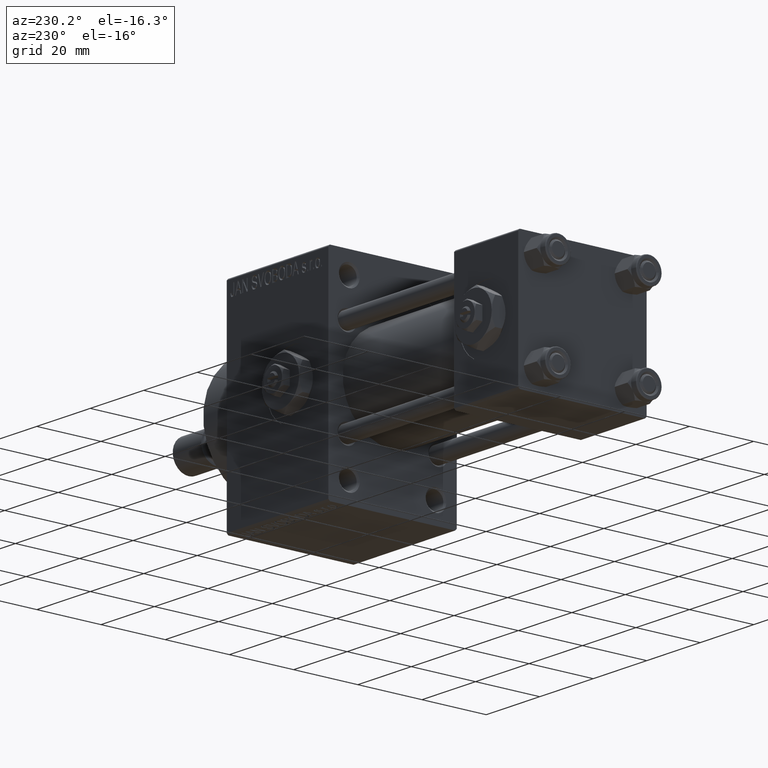
[diagram: clean part render]
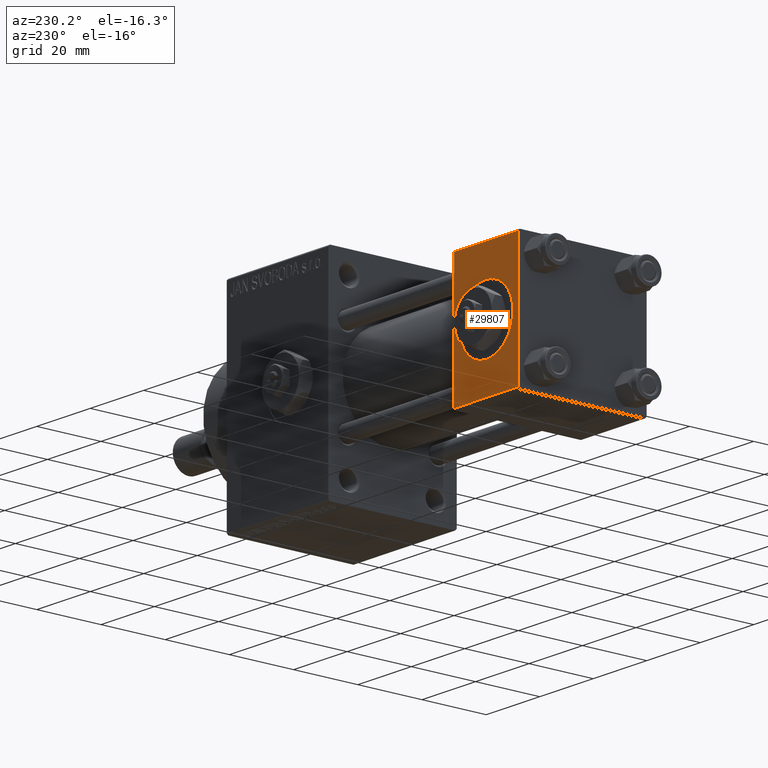
[diagram: same view with one face highlighted and labeled with its STEP entity id]
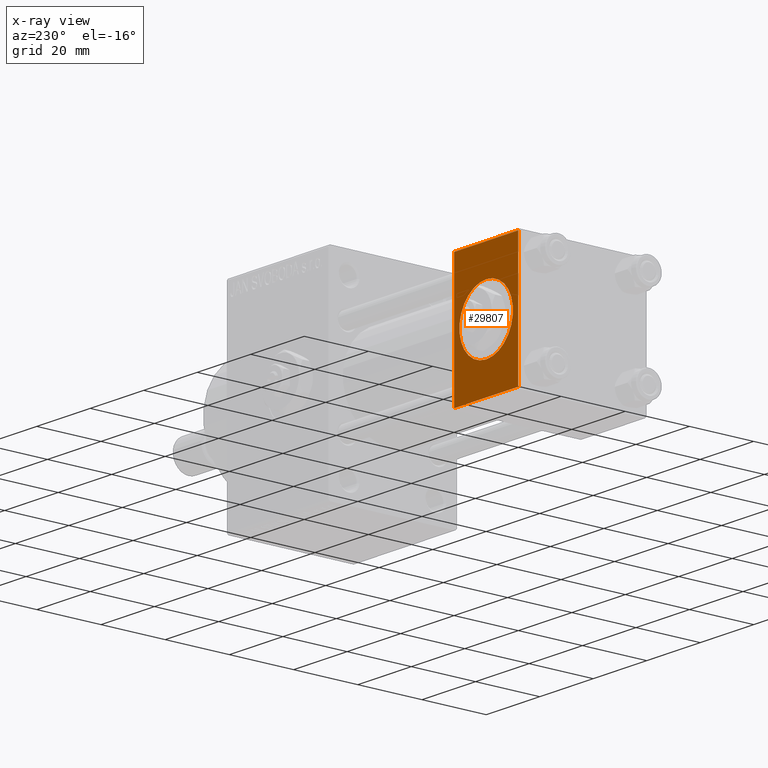
[diagram: x-ray of the same camera — body ghosted, the highlighted face saturated]
A machine part, auxiliary view. The second image highlights one B-rep face of the part: STEP entity #29807.
The next image is the same camera in x-ray: the body ghosted, the highlighted face saturated — about 0% of this face is hidden behind the body in this view.
In plain terms, the highlighted planar face has unit normal (0, 1, 0).
Its self-contained STEP definition (entity closure, byte-faithful):
#391 = VERTEX_POINT ( 'NONE', #42061 ) ;
#832 = DIRECTION ( 'NONE',  ( 0.000000000000000000, 0.000000000000000000, -1.000000000000000000 ) ) ;
#1231 = CIRCLE ( 'NONE', #21991, 10.00000000000000000 ) ;
#2397 = FACE_BOUND ( 'NONE', #39456, .T. ) ;
#4215 = ORIENTED_EDGE ( 'NONE', *, *, #40417, .F. ) ;
#4694 = CARTESIAN_POINT ( 'NONE',  ( 24.00000000000000000, 20.00000000000000000, 19.49999999999999289 ) ) ;
#6197 = ORIENTED_EDGE ( 'NONE', *, *, #14181, .T. ) ;
#6319 = VERTEX_POINT ( 'NONE', #12579 ) ;
#6662 = CARTESIAN_POINT ( 'NONE',  ( 24.00000000000000000, 20.00000000000000000, 20.00000000000000000 ) ) ;
#7170 = LINE ( 'NONE', #6662, #24678 ) ;
#10037 = AXIS2_PLACEMENT_3D ( 'NONE', #22622, #46395, #26385 ) ;
#12223 = LINE ( 'NONE', #39508, #25995 ) ;
#12579 = CARTESIAN_POINT ( 'NONE',  ( 0.000000000000000000, 20.00000000000000000, 19.49999999999999289 ) ) ;
#13152 = VERTEX_POINT ( 'NONE', #4694 ) ;
#13203 = VERTEX_POINT ( 'NONE', #20693 ) ;
#13452 = AXIS2_PLACEMENT_3D ( 'NONE', #48708, #13666, #14419 ) ;
#13666 = DIRECTION ( 'NONE',  ( -0.000000000000000000, 1.000000000000000000, 0.000000000000000000 ) ) ;
#14181 = EDGE_CURVE ( 'NONE', #6319, #13152, #23481, .T. ) ;
#14419 = DIRECTION ( 'NONE',  ( 0.000000000000000000, -0.000000000000000000, 1.000000000000000000 ) ) ;
#15248 = DIRECTION ( 'NONE',  ( 0.000000000000000000, 0.000000000000000000, 1.000000000000000000 ) ) ;
#16000 = DIRECTION ( 'NONE',  ( -1.000000000000000000, 0.000000000000000000, 0.000000000000000000 ) ) ;
#16903 = VERTEX_POINT ( 'NONE', #31589 ) ;
#20693 = CARTESIAN_POINT ( 'NONE',  ( 24.00000000000000000, 20.00000000000000000, -19.50000000000002132 ) ) ;
#21189 = CARTESIAN_POINT ( 'NONE',  ( 0.000000000000000000, 20.00000000000000000, -19.50000000000002132 ) ) ;
#21991 = AXIS2_PLACEMENT_3D ( 'NONE', #44781, #41283, #15248 ) ;
#22293 = ORIENTED_EDGE ( 'NONE', *, *, #34252, .F. ) ;
#22622 = CARTESIAN_POINT ( 'NONE',  ( 12.00000000000000000, 20.00000000000000000, 0.000000000000000000 ) ) ;
#22691 = DIRECTION ( 'NONE',  ( 0.000000000000000000, 0.000000000000000000, -1.000000000000000000 ) ) ;
#22862 = CIRCLE ( 'NONE', #10037, 10.00000000000000000 ) ;
#23195 = VECTOR ( 'NONE', #832, 1000.000000000000000 ) ;
#23481 = LINE ( 'NONE', #31491, #25933 ) ;
#24678 = VECTOR ( 'NONE', #22691, 1000.000000000000000 ) ;
#25181 = PLANE ( 'NONE',  #13452 ) ;
#25933 = VECTOR ( 'NONE', #34771, 1000.000000000000000 ) ;
#25995 = VECTOR ( 'NONE', #16000, 1000.000000000000000 ) ;
#26179 = FACE_OUTER_BOUND ( 'NONE', #38508, .T. ) ;
#26385 = DIRECTION ( 'NONE',  ( 0.000000000000000000, 0.000000000000000000, 1.000000000000000000 ) ) ;
#27856 = LINE ( 'NONE', #47341, #23195 ) ;
#28167 = VERTEX_POINT ( 'NONE', #21189 ) ;
#29807 = ADVANCED_FACE ( 'NONE', ( #2397, #26179 ), #25181, .T. ) ;
#31491 = CARTESIAN_POINT ( 'NONE',  ( 24.00000000000000000, 20.00000000000000000, 19.49999999999999289 ) ) ;
#31501 = EDGE_CURVE ( 'NONE', #13152, #13203, #7170, .T. ) ;
#31589 = CARTESIAN_POINT ( 'NONE',  ( 12.00000000000000000, 20.00000000000000000, 10.00000000000000000 ) ) ;
#34252 = EDGE_CURVE ( 'NONE', #6319, #28167, #27856, .T. ) ;
#34567 = ORIENTED_EDGE ( 'NONE', *, *, #41106, .F. ) ;
#34771 = DIRECTION ( 'NONE',  ( 1.000000000000000000, 0.000000000000000000, 0.000000000000000000 ) ) ;
#38508 = EDGE_LOOP ( 'NONE', ( #46534, #42777, #22293, #6197 ) ) ;
#39456 = EDGE_LOOP ( 'NONE', ( #4215, #34567 ) ) ;
#39508 = CARTESIAN_POINT ( 'NONE',  ( 24.00000000000000000, 20.00000000000000000, -19.50000000000002132 ) ) ;
#40417 = EDGE_CURVE ( 'NONE', #16903, #391, #1231, .T. ) ;
#40566 = EDGE_CURVE ( 'NONE', #13203, #28167, #12223, .T. ) ;
#41106 = EDGE_CURVE ( 'NONE', #391, #16903, #22862, .T. ) ;
#41283 = DIRECTION ( 'NONE',  ( 0.000000000000000000, 1.000000000000000000, 0.000000000000000000 ) ) ;
#42061 = CARTESIAN_POINT ( 'NONE',  ( 12.00000000000000178, 20.00000000000000000, -10.00000000000000000 ) ) ;
#42777 = ORIENTED_EDGE ( 'NONE', *, *, #40566, .T. ) ;
#44781 = CARTESIAN_POINT ( 'NONE',  ( 12.00000000000000000, 20.00000000000000000, 0.000000000000000000 ) ) ;
#46395 = DIRECTION ( 'NONE',  ( 0.000000000000000000, 1.000000000000000000, 0.000000000000000000 ) ) ;
#46534 = ORIENTED_EDGE ( 'NONE', *, *, #31501, .T. ) ;
#47341 = CARTESIAN_POINT ( 'NONE',  ( 0.000000000000000000, 20.00000000000000000, 20.00000000000000000 ) ) ;
#48708 = CARTESIAN_POINT ( 'NONE',  ( 24.00000000000000000, 20.00000000000000000, 20.00000000000000000 ) ) ;